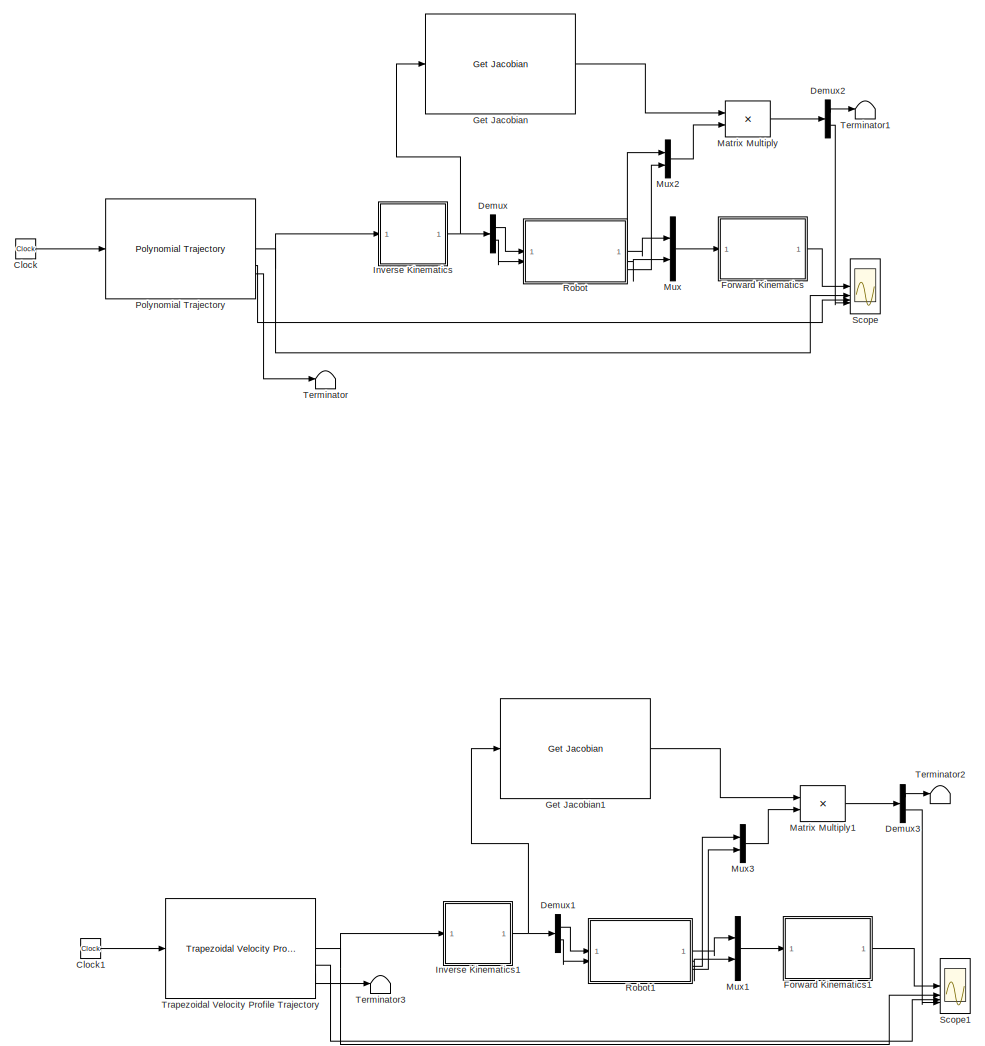
[diagram: root canvas - part 1/2, left side, full height]
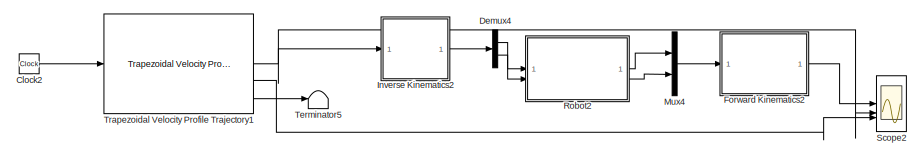
[diagram: root canvas - part 2/2, bottom right region]
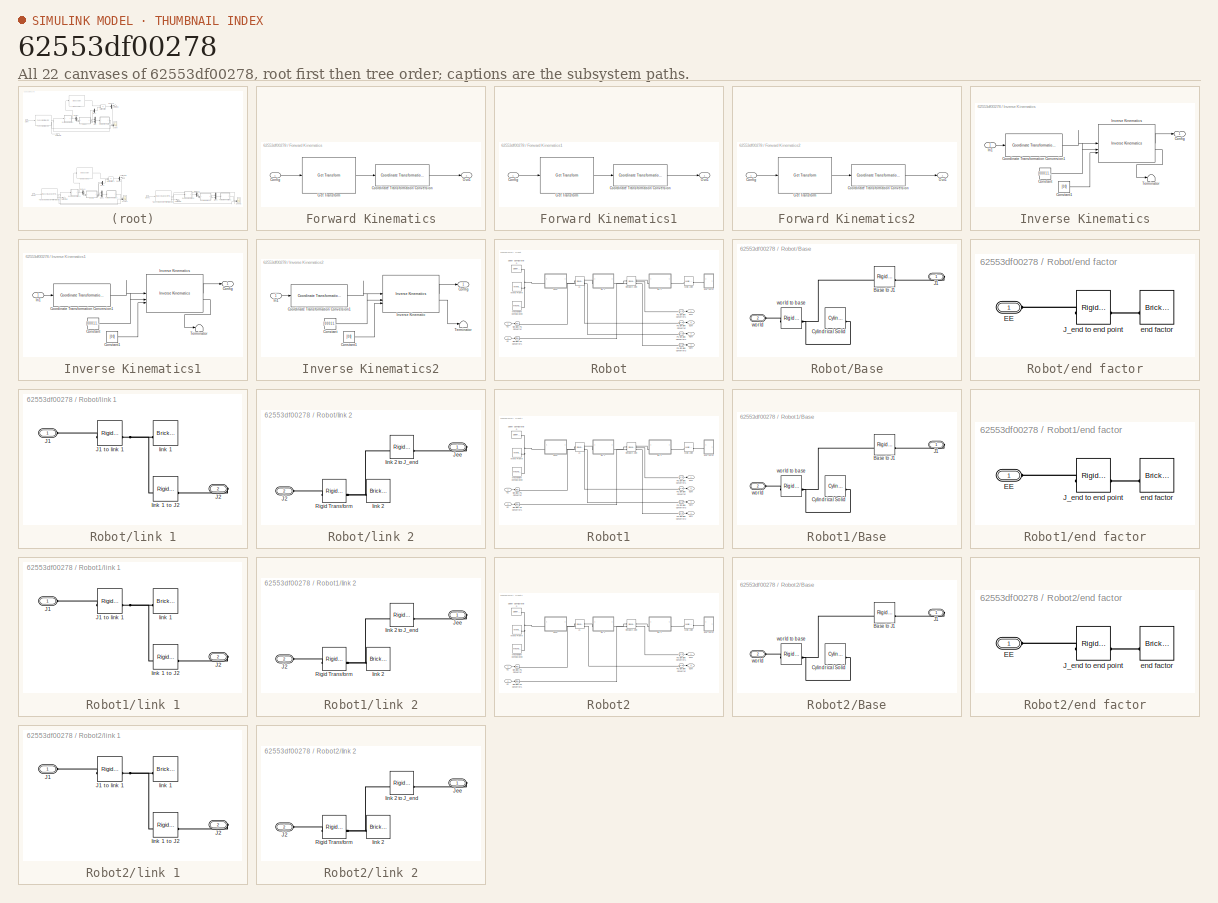
[diagram: thumbnail index - all 22 canvases of the model, root first then tree order]
MODEL slx_62553df00278
KIND model
CONFIG AbsTol = auto
CONFIG EnableMultiTasking = off
CONFIG FixedStep = auto
CONFIG MaxStep = auto
CONFIG MinStep = auto
CONFIG RelTol = 1e-3
CONFIG SampleTimeConstraint = Unconstrained
CONFIG SolverName = VariableStepAuto
CONFIG StartTime = 0.0
CONFIG StopTime = 5
BLOCK [Clock] Clock
  Commented = on
BLOCK [Clock] Clock1
  Commented = on
BLOCK [Clock] Clock2
BLOCK [Demux] Demux
  Commented = on
  Outputs = 2
BLOCK [Demux] Demux1
  Commented = on
  Outputs = 2
BLOCK [Demux] Demux2
  Commented = on
  Outputs = 2
BLOCK [Demux] Demux3
  Commented = on
  Outputs = 2
BLOCK [Demux] Demux4
  Outputs = 2
BLOCK [SubSystem] Forward Kinematics
  Commented = on
BLOCK [Inport] Forward Kinematics/Config
BLOCK [Reference] Forward Kinematics/Coordinate Transformation Conversion  REF=robotcorelib/Coordinate Transformation Conversion
  SourceBlock = robotcorelib/Coordinate Transformation Conversion
  SourceType = robotics.slcore.internal.block.CoordinateTransformationConversion
BLOCK [Reference] Forward Kinematics/Get Transform  REF=robotmaniplib/Get Transform
  SourceBlock = robotmaniplib/Get Transform
  SourceType = Get Transform
BLOCK [Outport] Forward Kinematics/Out1
BLOCK [SubSystem] Forward Kinematics1
  Commented = on
BLOCK [Inport] Forward Kinematics1/Config
BLOCK [Reference] Forward Kinematics1/Coordinate Transformation Conversion  REF=robotcorelib/Coordinate Transformation Conversion
  SourceBlock = robotcorelib/Coordinate Transformation Conversion
  SourceType = robotics.slcore.internal.block.CoordinateTransformationConversion
BLOCK [Reference] Forward Kinematics1/Get Transform  REF=robotmaniplib/Get Transform
  SourceBlock = robotmaniplib/Get Transform
  SourceType = Get Transform
BLOCK [Outport] Forward Kinematics1/Out1
BLOCK [SubSystem] Forward Kinematics2
BLOCK [Inport] Forward Kinematics2/Config
BLOCK [Reference] Forward Kinematics2/Coordinate Transformation Conversion  REF=robotcorelib/Coordinate Transformation Conversion
  SourceBlock = robotcorelib/Coordinate Transformation Conversion
  SourceType = robotics.slcore.internal.block.CoordinateTransformationConversion
BLOCK [Reference] Forward Kinematics2/Get Transform  REF=robotmaniplib/Get Transform
  SourceBlock = robotmaniplib/Get Transform
  SourceType = Get Transform
BLOCK [Outport] Forward Kinematics2/Out1
BLOCK [Reference] Get Jacobian  REF=robotmaniplib/Get Jacobian
  Commented = on
  SourceBlock = robotmaniplib/Get Jacobian
  SourceType = Get Jacobian
BLOCK [Reference] Get Jacobian1  REF=robotmaniplib/Get Jacobian
  Commented = on
  SourceBlock = robotmaniplib/Get Jacobian
  SourceType = Get Jacobian
BLOCK [SubSystem] Inverse Kinematics
  Commented = on
BLOCK [Outport] Inverse Kinematics/Config
BLOCK [Constant] Inverse Kinematics/Constant
  Value = [0 0 0 1 1 1]
BLOCK [Constant] Inverse Kinematics/Constant1
  Value = [0 0]
BLOCK [Reference] Inverse Kinematics/Coordinate Transformation Conversion1  REF=robotcorelib/Coordinate Transformation Conversion
  SourceBlock = robotcorelib/Coordinate Transformation Conversion
  SourceType = robotics.slcore.internal.block.CoordinateTransformationConversion
BLOCK [Inport] Inverse Kinematics/In1
BLOCK [Reference] Inverse Kinematics/Inverse Kinematics  REF=robotmaniplib/Inverse Kinematics
  SourceBlock = robotmaniplib/Inverse Kinematics
  SourceType = Inverse Kinematics
BLOCK [Terminator] Inverse Kinematics/Terminator
BLOCK [SubSystem] Inverse Kinematics1
  Commented = on
BLOCK [Outport] Inverse Kinematics1/Config
BLOCK [Constant] Inverse Kinematics1/Constant
  Value = [0 0 0 1 1 1]
BLOCK [Constant] Inverse Kinematics1/Constant1
  Value = [0 0]
BLOCK [Reference] Inverse Kinematics1/Coordinate Transformation Conversion1  REF=robotcorelib/Coordinate Transformation Conversion
  SourceBlock = robotcorelib/Coordinate Transformation Conversion
  SourceType = robotics.slcore.internal.block.CoordinateTransformationConversion
BLOCK [Inport] Inverse Kinematics1/In1
BLOCK [Reference] Inverse Kinematics1/Inverse Kinematics  REF=robotmaniplib/Inverse Kinematics
  SourceBlock = robotmaniplib/Inverse Kinematics
  SourceType = Inverse Kinematics
BLOCK [Terminator] Inverse Kinematics1/Terminator
BLOCK [SubSystem] Inverse Kinematics2
BLOCK [Outport] Inverse Kinematics2/Config
BLOCK [Constant] Inverse Kinematics2/Constant
  Value = [0 0 0 1 1 1]
BLOCK [Constant] Inverse Kinematics2/Constant1
  Value = [0 0]
BLOCK [Reference] Inverse Kinematics2/Coordinate Transformation Conversion1  REF=robotcorelib/Coordinate Transformation Conversion
  SourceBlock = robotcorelib/Coordinate Transformation Conversion
  SourceType = robotics.slcore.internal.block.CoordinateTransformationConversion
BLOCK [Inport] Inverse Kinematics2/In1
BLOCK [Reference] Inverse Kinematics2/Inverse Kinematic  REF=robotmaniplib/Inverse Kinematics
  SourceBlock = robotmaniplib/Inverse Kinematics
  SourceType = Inverse Kinematics
BLOCK [Terminator] Inverse Kinematics2/Terminator
BLOCK [Product] Matrix Multiply
  Commented = on
  Multiplication = Matrix(*)
BLOCK [Product] Matrix Multiply1
  Commented = on
  Multiplication = Matrix(*)
BLOCK [Mux] Mux
  Commented = on
  DisplayOption = bar
  Inputs = 2
BLOCK [Mux] Mux1
  Commented = on
  DisplayOption = bar
  Inputs = 2
BLOCK [Mux] Mux2
  Commented = on
  DisplayOption = bar
  Inputs = 2
BLOCK [Mux] Mux3
  Commented = on
  DisplayOption = bar
  Inputs = 2
BLOCK [Mux] Mux4
  DisplayOption = bar
  Inputs = 2
BLOCK [Reference] Polynomial Trajectory  REF=robotcorelib/Polynomial Trajectory
  Commented = on
  SourceBlock = robotcorelib/Polynomial Trajectory
  SourceType = robotics.slcore.internal.block.PolyTrajSys
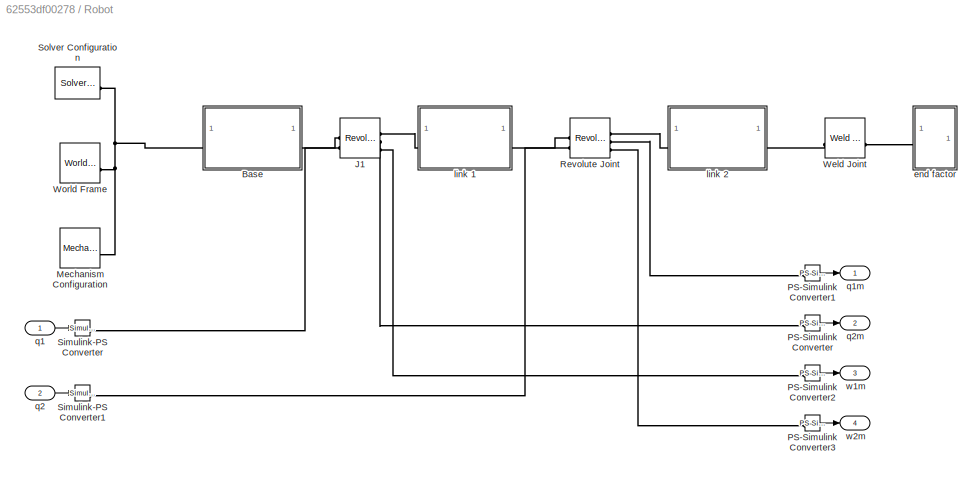
BLOCK [SubSystem] Robot
  Commented = on
BLOCK [SubSystem] Robot/Base
BLOCK [Reference] Robot/Base/Base to J1  REF=sm_lib/Frames and
Transforms/Rigid
Transform
  SourceBlock = sm_lib/Frames and\nTransforms/Rigid\nTransform
  SourceType = Rigid\nTransform
BLOCK [Reference] Robot/Base/Cylindrical Solid  REF=sm_lib/Body Elements/Cylindrical Solid
  SourceBlock = sm_lib/Body Elements/Cylindrical Solid
  SourceType = Cylindrical Solid
BLOCK [PMIOPort] Robot/Base/J1
  Side = Right
BLOCK [PMIOPort] Robot/Base/world
  Port = 2
  Side = Left
BLOCK [Reference] Robot/Base/world to base  REF=sm_lib/Frames and
Transforms/Rigid
Transform
  SourceBlock = sm_lib/Frames and\nTransforms/Rigid\nTransform
  SourceType = Rigid\nTransform
BLOCK [Reference] Robot/J1  REF=sm_lib/Joints/Revolute Joint
  SourceBlock = sm_lib/Joints/Revolute Joint
  SourceType = Revolute Joint
BLOCK [Reference] Robot/Mechanism Configuration  REF=sm_lib/Utilities/Mechanism
Configuration
  SourceBlock = sm_lib/Utilities/Mechanism\nConfiguration
  SourceType = Mechanism\nConfiguration
BLOCK [Reference] Robot/PS-Simulink Converter  REF=nesl_utility/PS-Simulink
Converter
  SourceBlock = nesl_utility/PS-Simulink\nConverter
  SourceType = PS-Simulink\nConverter
BLOCK [Reference] Robot/PS-Simulink Converter1  REF=nesl_utility/PS-Simulink
Converter
  SourceBlock = nesl_utility/PS-Simulink\nConverter
  SourceType = PS-Simulink\nConverter
BLOCK [Reference] Robot/PS-Simulink Converter2  REF=nesl_utility/PS-Simulink
Converter
  SourceBlock = nesl_utility/PS-Simulink\nConverter
  SourceType = PS-Simulink\nConverter
BLOCK [Reference] Robot/PS-Simulink Converter3  REF=nesl_utility/PS-Simulink
Converter
  SourceBlock = nesl_utility/PS-Simulink\nConverter
  SourceType = PS-Simulink\nConverter
BLOCK [Reference] Robot/Revolute Joint  REF=sm_lib/Joints/Revolute Joint
  SourceBlock = sm_lib/Joints/Revolute Joint
  SourceType = Revolute Joint
BLOCK [Reference] Robot/Simulink-PS Converter  REF=nesl_utility/Simulink-PS
Converter
  SourceBlock = nesl_utility/Simulink-PS\nConverter
  SourceType = Simulink-PS\nConverter
BLOCK [Reference] Robot/Simulink-PS Converter1  REF=nesl_utility/Simulink-PS
Converter
  SourceBlock = nesl_utility/Simulink-PS\nConverter
  SourceType = Simulink-PS\nConverter
BLOCK [Reference] Robot/Solver Configuration  REF=nesl_utility/Solver
Configuration
  SourceBlock = nesl_utility/Solver\nConfiguration
  SourceType = Solver\nConfiguration
BLOCK [Reference] Robot/Weld Joint  REF=sm_lib/Joints/Weld Joint
  SourceBlock = sm_lib/Joints/Weld Joint
  SourceType = Weld Joint
BLOCK [Reference] Robot/World Frame  REF=sm_lib/Frames and
Transforms/World Frame
  SourceBlock = sm_lib/Frames and\nTransforms/World Frame
  SourceType = World Frame
BLOCK [SubSystem] Robot/end factor
BLOCK [PMIOPort] Robot/end factor/EE
  Side = Left
BLOCK [Reference] Robot/end factor/J_end to end point  REF=sm_lib/Frames and
Transforms/Rigid
Transform
  SourceBlock = sm_lib/Frames and\nTransforms/Rigid\nTransform
  SourceType = Rigid\nTransform
BLOCK [Reference] Robot/end factor/end factor  REF=sm_lib/Body Elements/Brick Solid
  NameLocation = top
  SourceBlock = sm_lib/Body Elements/Brick Solid
  SourceType = Brick Solid
BLOCK [SubSystem] Robot/link 1
BLOCK [PMIOPort] Robot/link 1/J1
  Side = Left
BLOCK [Reference] Robot/link 1/J1 to link 1  REF=sm_lib/Frames and
Transforms/Rigid
Transform
  SourceBlock = sm_lib/Frames and\nTransforms/Rigid\nTransform
  SourceType = Rigid\nTransform
BLOCK [PMIOPort] Robot/link 1/J2
  Port = 2
  Side = Right
BLOCK [Reference] Robot/link 1/link 1  REF=sm_lib/Body Elements/Brick Solid
  NameLocation = top
  SourceBlock = sm_lib/Body Elements/Brick Solid
  SourceType = Brick Solid
BLOCK [Reference] Robot/link 1/link 1 to J2  REF=sm_lib/Frames and
Transforms/Rigid
Transform
  SourceBlock = sm_lib/Frames and\nTransforms/Rigid\nTransform
  SourceType = Rigid\nTransform
BLOCK [SubSystem] Robot/link 2
BLOCK [PMIOPort] Robot/link 2/J2
  Port = 2
  Side = Left
BLOCK [PMIOPort] Robot/link 2/Jee
  Side = Right
BLOCK [Reference] Robot/link 2/Rigid Transform  REF=sm_lib/Frames and
Transforms/Rigid
Transform
  SourceBlock = sm_lib/Frames and\nTransforms/Rigid\nTransform
  SourceType = Rigid\nTransform
BLOCK [Reference] Robot/link 2/link 2  REF=sm_lib/Body Elements/Brick Solid
  NameLocation = top
  SourceBlock = sm_lib/Body Elements/Brick Solid
  SourceType = Brick Solid
BLOCK [Reference] Robot/link 2/link 2 to J_end  REF=sm_lib/Frames and
Transforms/Rigid
Transform
  SourceBlock = sm_lib/Frames and\nTransforms/Rigid\nTransform
  SourceType = Rigid\nTransform
BLOCK [Inport] Robot/q1
BLOCK [Outport] Robot/q1m
BLOCK [Inport] Robot/q2
  Port = 2
BLOCK [Outport] Robot/q2m
  Port = 2
BLOCK [Outport] Robot/w1m
  Port = 3
BLOCK [Outport] Robot/w2m
  Port = 4
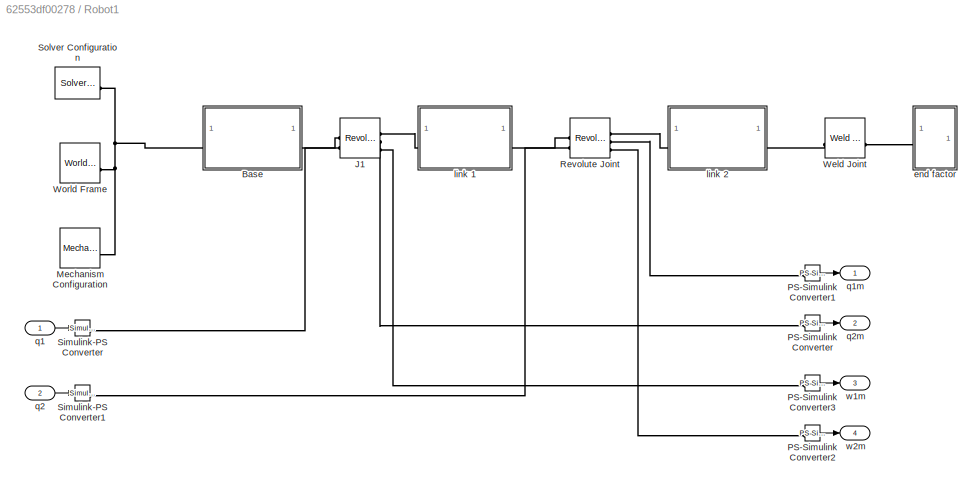
BLOCK [SubSystem] Robot1
  Commented = on
BLOCK [SubSystem] Robot1/Base
BLOCK [Reference] Robot1/Base/Base to J1  REF=sm_lib/Frames and
Transforms/Rigid
Transform
  SourceBlock = sm_lib/Frames and\nTransforms/Rigid\nTransform
  SourceType = Rigid\nTransform
BLOCK [Reference] Robot1/Base/Cylindrical Solid  REF=sm_lib/Body Elements/Cylindrical Solid
  SourceBlock = sm_lib/Body Elements/Cylindrical Solid
  SourceType = Cylindrical Solid
BLOCK [PMIOPort] Robot1/Base/J1
  Side = Right
BLOCK [PMIOPort] Robot1/Base/world
  Port = 2
  Side = Left
BLOCK [Reference] Robot1/Base/world to base  REF=sm_lib/Frames and
Transforms/Rigid
Transform
  SourceBlock = sm_lib/Frames and\nTransforms/Rigid\nTransform
  SourceType = Rigid\nTransform
BLOCK [Reference] Robot1/J1  REF=sm_lib/Joints/Revolute Joint
  SourceBlock = sm_lib/Joints/Revolute Joint
  SourceType = Revolute Joint
BLOCK [Reference] Robot1/Mechanism Configuration  REF=sm_lib/Utilities/Mechanism
Configuration
  SourceBlock = sm_lib/Utilities/Mechanism\nConfiguration
  SourceType = Mechanism\nConfiguration
BLOCK [Reference] Robot1/PS-Simulink Converter  REF=nesl_utility/PS-Simulink
Converter
  SourceBlock = nesl_utility/PS-Simulink\nConverter
  SourceType = PS-Simulink\nConverter
BLOCK [Reference] Robot1/PS-Simulink Converter1  REF=nesl_utility/PS-Simulink
Converter
  SourceBlock = nesl_utility/PS-Simulink\nConverter
  SourceType = PS-Simulink\nConverter
BLOCK [Reference] Robot1/PS-Simulink Converter2  REF=nesl_utility/PS-Simulink
Converter
  SourceBlock = nesl_utility/PS-Simulink\nConverter
  SourceType = PS-Simulink\nConverter
BLOCK [Reference] Robot1/PS-Simulink Converter3  REF=nesl_utility/PS-Simulink
Converter
  SourceBlock = nesl_utility/PS-Simulink\nConverter
  SourceType = PS-Simulink\nConverter
BLOCK [Reference] Robot1/Revolute Joint  REF=sm_lib/Joints/Revolute Joint
  SourceBlock = sm_lib/Joints/Revolute Joint
  SourceType = Revolute Joint
BLOCK [Reference] Robot1/Simulink-PS Converter  REF=nesl_utility/Simulink-PS
Converter
  SourceBlock = nesl_utility/Simulink-PS\nConverter
  SourceType = Simulink-PS\nConverter
BLOCK [Reference] Robot1/Simulink-PS Converter1  REF=nesl_utility/Simulink-PS
Converter
  SourceBlock = nesl_utility/Simulink-PS\nConverter
  SourceType = Simulink-PS\nConverter
BLOCK [Reference] Robot1/Solver Configuration  REF=nesl_utility/Solver
Configuration
  SourceBlock = nesl_utility/Solver\nConfiguration
  SourceType = Solver\nConfiguration
BLOCK [Reference] Robot1/Weld Joint  REF=sm_lib/Joints/Weld Joint
  SourceBlock = sm_lib/Joints/Weld Joint
  SourceType = Weld Joint
BLOCK [Reference] Robot1/World Frame  REF=sm_lib/Frames and
Transforms/World Frame
  SourceBlock = sm_lib/Frames and\nTransforms/World Frame
  SourceType = World Frame
BLOCK [SubSystem] Robot1/end factor
BLOCK [PMIOPort] Robot1/end factor/EE
  Side = Left
BLOCK [Reference] Robot1/end factor/J_end to end point  REF=sm_lib/Frames and
Transforms/Rigid
Transform
  SourceBlock = sm_lib/Frames and\nTransforms/Rigid\nTransform
  SourceType = Rigid\nTransform
BLOCK [Reference] Robot1/end factor/end factor  REF=sm_lib/Body Elements/Brick Solid
  NameLocation = top
  SourceBlock = sm_lib/Body Elements/Brick Solid
  SourceType = Brick Solid
BLOCK [SubSystem] Robot1/link 1
BLOCK [PMIOPort] Robot1/link 1/J1
  Side = Left
BLOCK [Reference] Robot1/link 1/J1 to link 1  REF=sm_lib/Frames and
Transforms/Rigid
Transform
  SourceBlock = sm_lib/Frames and\nTransforms/Rigid\nTransform
  SourceType = Rigid\nTransform
BLOCK [PMIOPort] Robot1/link 1/J2
  Port = 2
  Side = Right
BLOCK [Reference] Robot1/link 1/link 1  REF=sm_lib/Body Elements/Brick Solid
  NameLocation = top
  SourceBlock = sm_lib/Body Elements/Brick Solid
  SourceType = Brick Solid
BLOCK [Reference] Robot1/link 1/link 1 to J2  REF=sm_lib/Frames and
Transforms/Rigid
Transform
  SourceBlock = sm_lib/Frames and\nTransforms/Rigid\nTransform
  SourceType = Rigid\nTransform
BLOCK [SubSystem] Robot1/link 2
BLOCK [PMIOPort] Robot1/link 2/J2
  Port = 2
  Side = Left
BLOCK [PMIOPort] Robot1/link 2/Jee
  Side = Right
BLOCK [Reference] Robot1/link 2/Rigid Transform  REF=sm_lib/Frames and
Transforms/Rigid
Transform
  SourceBlock = sm_lib/Frames and\nTransforms/Rigid\nTransform
  SourceType = Rigid\nTransform
BLOCK [Reference] Robot1/link 2/link 2  REF=sm_lib/Body Elements/Brick Solid
  NameLocation = top
  SourceBlock = sm_lib/Body Elements/Brick Solid
  SourceType = Brick Solid
BLOCK [Reference] Robot1/link 2/link 2 to J_end  REF=sm_lib/Frames and
Transforms/Rigid
Transform
  SourceBlock = sm_lib/Frames and\nTransforms/Rigid\nTransform
  SourceType = Rigid\nTransform
BLOCK [Inport] Robot1/q1
BLOCK [Outport] Robot1/q1m
BLOCK [Inport] Robot1/q2
  Port = 2
BLOCK [Outport] Robot1/q2m
  Port = 2
BLOCK [Outport] Robot1/w1m
  Port = 3
BLOCK [Outport] Robot1/w2m
  Port = 4
BLOCK [SubSystem] Robot2
BLOCK [SubSystem] Robot2/Base
BLOCK [Reference] Robot2/Base/Base to J1  REF=sm_lib/Frames and
Transforms/Rigid
Transform
  SourceBlock = sm_lib/Frames and\nTransforms/Rigid\nTransform
  SourceType = Rigid\nTransform
BLOCK [Reference] Robot2/Base/Cylindrical Solid  REF=sm_lib/Body Elements/Cylindrical Solid
  SourceBlock = sm_lib/Body Elements/Cylindrical Solid
  SourceType = Cylindrical Solid
BLOCK [PMIOPort] Robot2/Base/J1
  Side = Right
BLOCK [PMIOPort] Robot2/Base/world
  Port = 2
  Side = Left
BLOCK [Reference] Robot2/Base/world to base  REF=sm_lib/Frames and
Transforms/Rigid
Transform
  SourceBlock = sm_lib/Frames and\nTransforms/Rigid\nTransform
  SourceType = Rigid\nTransform
BLOCK [Reference] Robot2/J1  REF=sm_lib/Joints/Revolute Joint
  SourceBlock = sm_lib/Joints/Revolute Joint
  SourceType = Revolute Joint
BLOCK [Reference] Robot2/Mechanism Configuration  REF=sm_lib/Utilities/Mechanism
Configuration
  SourceBlock = sm_lib/Utilities/Mechanism\nConfiguration
  SourceType = Mechanism\nConfiguration
BLOCK [Reference] Robot2/PS-Simulink Converter  REF=nesl_utility/PS-Simulink
Converter
  SourceBlock = nesl_utility/PS-Simulink\nConverter
  SourceType = PS-Simulink\nConverter
BLOCK [Reference] Robot2/PS-Simulink Converter1  REF=nesl_utility/PS-Simulink
Converter
  SourceBlock = nesl_utility/PS-Simulink\nConverter
  SourceType = PS-Simulink\nConverter
BLOCK [Reference] Robot2/Revolute Joint  REF=sm_lib/Joints/Revolute Joint
  SourceBlock = sm_lib/Joints/Revolute Joint
  SourceType = Revolute Joint
BLOCK [Reference] Robot2/Simulink-PS Converter  REF=nesl_utility/Simulink-PS
Converter
  SourceBlock = nesl_utility/Simulink-PS\nConverter
  SourceType = Simulink-PS\nConverter
BLOCK [Reference] Robot2/Simulink-PS Converter1  REF=nesl_utility/Simulink-PS
Converter
  SourceBlock = nesl_utility/Simulink-PS\nConverter
  SourceType = Simulink-PS\nConverter
BLOCK [Reference] Robot2/Solver Configuration  REF=nesl_utility/Solver
Configuration
  SourceBlock = nesl_utility/Solver\nConfiguration
  SourceType = Solver\nConfiguration
BLOCK [Reference] Robot2/Weld Joint  REF=sm_lib/Joints/Weld Joint
  SourceBlock = sm_lib/Joints/Weld Joint
  SourceType = Weld Joint
BLOCK [Reference] Robot2/World Frame  REF=sm_lib/Frames and
Transforms/World Frame
  SourceBlock = sm_lib/Frames and\nTransforms/World Frame
  SourceType = World Frame
BLOCK [SubSystem] Robot2/end factor
BLOCK [PMIOPort] Robot2/end factor/EE
  Side = Left
BLOCK [Reference] Robot2/end factor/J_end to end point  REF=sm_lib/Frames and
Transforms/Rigid
Transform
  SourceBlock = sm_lib/Frames and\nTransforms/Rigid\nTransform
  SourceType = Rigid\nTransform
BLOCK [Reference] Robot2/end factor/end factor  REF=sm_lib/Body Elements/Brick Solid
  NameLocation = top
  SourceBlock = sm_lib/Body Elements/Brick Solid
  SourceType = Brick Solid
BLOCK [SubSystem] Robot2/link 1
BLOCK [PMIOPort] Robot2/link 1/J1
  Side = Left
BLOCK [Reference] Robot2/link 1/J1 to link 1  REF=sm_lib/Frames and
Transforms/Rigid
Transform
  SourceBlock = sm_lib/Frames and\nTransforms/Rigid\nTransform
  SourceType = Rigid\nTransform
BLOCK [PMIOPort] Robot2/link 1/J2
  Port = 2
  Side = Right
BLOCK [Reference] Robot2/link 1/link 1  REF=sm_lib/Body Elements/Brick Solid
  NameLocation = top
  SourceBlock = sm_lib/Body Elements/Brick Solid
  SourceType = Brick Solid
BLOCK [Reference] Robot2/link 1/link 1 to J2  REF=sm_lib/Frames and
Transforms/Rigid
Transform
  SourceBlock = sm_lib/Frames and\nTransforms/Rigid\nTransform
  SourceType = Rigid\nTransform
BLOCK [SubSystem] Robot2/link 2
BLOCK [PMIOPort] Robot2/link 2/J2
  Port = 2
  Side = Left
BLOCK [PMIOPort] Robot2/link 2/Jee
  Side = Right
BLOCK [Reference] Robot2/link 2/Rigid Transform  REF=sm_lib/Frames and
Transforms/Rigid
Transform
  SourceBlock = sm_lib/Frames and\nTransforms/Rigid\nTransform
  SourceType = Rigid\nTransform
BLOCK [Reference] Robot2/link 2/link 2  REF=sm_lib/Body Elements/Brick Solid
  NameLocation = top
  SourceBlock = sm_lib/Body Elements/Brick Solid
  SourceType = Brick Solid
BLOCK [Reference] Robot2/link 2/link 2 to J_end  REF=sm_lib/Frames and
Transforms/Rigid
Transform
  SourceBlock = sm_lib/Frames and\nTransforms/Rigid\nTransform
  SourceType = Rigid\nTransform
BLOCK [Inport] Robot2/q1
BLOCK [Outport] Robot2/q1m
BLOCK [Inport] Robot2/q2
  Port = 2
BLOCK [Outport] Robot2/q2m
  Port = 2
BLOCK [Scope] Scope
  Commented = on
  Floating = off
  NumInputPorts = 4
  ScopeSpecificationString = Simulink.scopes.TimeScopeBlockCfg('CurrentConfiguration', extmgr.ConfigurationSet(extmgr.Configuration('Core','General UI',true),extmgr.Configuration('Core','Source UI',true),extmgr.Configuration('Sources','WiredSimulink',true),extmgr.Configuration('Visuals','Time Domain',true,'SerializedDisplays',{struct('MinYLimReal','-0.21482','MaxYLimReal','0.41276','YLabelReal','','MinYLimMag','0.00000','MaxY...<+2904ch>
BLOCK [Scope] Scope1
  Commented = on
  Floating = off
  NumInputPorts = 4
  ScopeSpecificationString = Simulink.scopes.TimeScopeBlockCfg('CurrentConfiguration', extmgr.ConfigurationSet(extmgr.Configuration('Core','General UI',true),extmgr.Configuration('Core','Source UI',true),extmgr.Configuration('Sources','WiredSimulink',true,'DataLoggingVariableName','ScopeData1'),extmgr.Configuration('Visuals','Time Domain',true,'SerializedDisplays',{struct('MinYLimReal','-0.21489','MaxYLimReal','0.41277','YLab...<+3720ch>
BLOCK [Scope] Scope2
  Floating = off
  NumInputPorts = 3
  ScopeSpecificationString = Simulink.scopes.TimeScopeBlockCfg('CurrentConfiguration', extmgr.ConfigurationSet(extmgr.Configuration('Core','General UI',true),extmgr.Configuration('Core','Source UI',true),extmgr.Configuration('Sources','WiredSimulink',true,'DataLoggingVariableName','ScopeData1'),extmgr.Configuration('Visuals','Time Domain',true,'SerializedDisplays',{struct('MinYLimReal','-0.21489','MaxYLimReal','0.41277','YLab...<+2999ch>
BLOCK [Terminator] Terminator
  Commented = on
BLOCK [Terminator] Terminator1
  Commented = on
BLOCK [Terminator] Terminator2
  Commented = on
BLOCK [Terminator] Terminator3
  Commented = on
BLOCK [Terminator] Terminator5
BLOCK [Reference] Trapezoidal Velocity Profile Trajectory  REF=robotcorelib/Trapezoidal Velocity Profile Trajectory
  Commented = on
  SourceBlock = robotcorelib/Trapezoidal Velocity Profile Trajectory
  SourceType = robotics.slcore.internal.block.TrapVelTrajSys
BLOCK [Reference] Trapezoidal Velocity Profile Trajectory1  REF=robotcorelib/Trapezoidal Velocity Profile Trajectory
  SourceBlock = robotcorelib/Trapezoidal Velocity Profile Trajectory
  SourceType = robotics.slcore.internal.block.TrapVelTrajSys
LINE Clock1:1 -> Trapezoidal Velocity Profile Trajectory:1
LINE Clock2:1 -> Trapezoidal Velocity Profile Trajectory1:1
LINE Clock:1 -> Polynomial Trajectory:1
LINE Demux1:1 -> Robot1:1
LINE Demux1:2 -> Robot1:2
LINE Demux2:1 -> Terminator1:1
LINE Demux2:2 -> Scope:4
LINE Demux3:1 -> Terminator2:1
LINE Demux3:2 -> Scope1:4
LINE Demux4:1 -> Robot2:1
LINE Demux4:2 -> Robot2:2
LINE Demux:1 -> Robot:1
LINE Demux:2 -> Robot:2
LINE Forward Kinematics/Config:1 -> Forward Kinematics/Get Transform:1
LINE Forward Kinematics/Coordinate Transformation Conversion:1 -> Forward Kinematics/Out1:1
LINE Forward Kinematics/Get Transform:1 -> Forward Kinematics/Coordinate Transformation Conversion:1
LINE Forward Kinematics1/Config:1 -> Forward Kinematics1/Get Transform:1
LINE Forward Kinematics1/Coordinate Transformation Conversion:1 -> Forward Kinematics1/Out1:1
LINE Forward Kinematics1/Get Transform:1 -> Forward Kinematics1/Coordinate Transformation Conversion:1
LINE Forward Kinematics1:1 -> Scope1:1
LINE Forward Kinematics2/Config:1 -> Forward Kinematics2/Get Transform:1
LINE Forward Kinematics2/Coordinate Transformation Conversion:1 -> Forward Kinematics2/Out1:1
LINE Forward Kinematics2/Get Transform:1 -> Forward Kinematics2/Coordinate Transformation Conversion:1
LINE Forward Kinematics2:1 -> Scope2:1
LINE Forward Kinematics:1 -> Scope:1
LINE Get Jacobian1:1 -> Matrix Multiply1:1
LINE Get Jacobian:1 -> Matrix Multiply:1
LINE Inverse Kinematics/Constant1:1 -> Inverse Kinematics/Inverse Kinematics:3
LINE Inverse Kinematics/Constant:1 -> Inverse Kinematics/Inverse Kinematics:2
LINE Inverse Kinematics/Coordinate Transformation Conversion1:1 -> Inverse Kinematics/Inverse Kinematics:1
LINE Inverse Kinematics/In1:1 -> Inverse Kinematics/Coordinate Transformation Conversion1:1
LINE Inverse Kinematics/Inverse Kinematics:1 -> Inverse Kinematics/Config:1
LINE Inverse Kinematics/Inverse Kinematics:2 -> Inverse Kinematics/Terminator:1
LINE Inverse Kinematics1/Constant1:1 -> Inverse Kinematics1/Inverse Kinematics:3
LINE Inverse Kinematics1/Constant:1 -> Inverse Kinematics1/Inverse Kinematics:2
LINE Inverse Kinematics1/Coordinate Transformation Conversion1:1 -> Inverse Kinematics1/Inverse Kinematics:1
LINE Inverse Kinematics1/In1:1 -> Inverse Kinematics1/Coordinate Transformation Conversion1:1
LINE Inverse Kinematics1/Inverse Kinematics:1 -> Inverse Kinematics1/Config:1
LINE Inverse Kinematics1/Inverse Kinematics:2 -> Inverse Kinematics1/Terminator:1
NET Inverse Kinematics1:1 -> Demux1:1, Get Jacobian1:1
LINE Inverse Kinematics2/Constant1:1 -> Inverse Kinematics2/Inverse Kinematic:3
LINE Inverse Kinematics2/Constant:1 -> Inverse Kinematics2/Inverse Kinematic:2
LINE Inverse Kinematics2/Coordinate Transformation Conversion1:1 -> Inverse Kinematics2/Inverse Kinematic:1
LINE Inverse Kinematics2/In1:1 -> Inverse Kinematics2/Coordinate Transformation Conversion1:1
LINE Inverse Kinematics2/Inverse Kinematic:1 -> Inverse Kinematics2/Config:1
LINE Inverse Kinematics2/Inverse Kinematic:2 -> Inverse Kinematics2/Terminator:1
LINE Inverse Kinematics2:1 -> Demux4:1
NET Inverse Kinematics:1 -> Demux:1, Get Jacobian:1
LINE Matrix Multiply1:1 -> Demux3:1
LINE Matrix Multiply:1 -> Demux2:1
LINE Mux1:1 -> Forward Kinematics1:1
LINE Mux2:1 -> Matrix Multiply:2
LINE Mux3:1 -> Matrix Multiply1:2
LINE Mux4:1 -> Forward Kinematics2:1
LINE Mux:1 -> Forward Kinematics:1
NET Polynomial Trajectory:1 -> Inverse Kinematics:1, Scope:2
LINE Polynomial Trajectory:2 -> Scope:3
LINE Polynomial Trajectory:3 -> Terminator:1
LINE Robot/PS-Simulink Converter1:1 -> Robot/q1m:1
LINE Robot/PS-Simulink Converter2:1 -> Robot/w1m:1
LINE Robot/PS-Simulink Converter3:1 -> Robot/w2m:1
LINE Robot/PS-Simulink Converter:1 -> Robot/q2m:1
LINE Robot/q1:1 -> Robot/Simulink-PS Converter:1
LINE Robot/q2:1 -> Robot/Simulink-PS Converter1:1
LINE Robot1/PS-Simulink Converter1:1 -> Robot1/q1m:1
LINE Robot1/PS-Simulink Converter2:1 -> Robot1/w2m:1
LINE Robot1/PS-Simulink Converter3:1 -> Robot1/w1m:1
LINE Robot1/PS-Simulink Converter:1 -> Robot1/q2m:1
LINE Robot1/q1:1 -> Robot1/Simulink-PS Converter:1
LINE Robot1/q2:1 -> Robot1/Simulink-PS Converter1:1
LINE Robot1:1 -> Mux1:1
LINE Robot1:2 -> Mux1:2
LINE Robot1:3 -> Mux3:1
LINE Robot1:4 -> Mux3:2
LINE Robot2/PS-Simulink Converter1:1 -> Robot2/q1m:1
LINE Robot2/PS-Simulink Converter:1 -> Robot2/q2m:1
LINE Robot2/q1:1 -> Robot2/Simulink-PS Converter:1
LINE Robot2/q2:1 -> Robot2/Simulink-PS Converter1:1
LINE Robot2:1 -> Mux4:1
LINE Robot2:2 -> Mux4:2
LINE Robot:1 -> Mux:1
LINE Robot:2 -> Mux:2
LINE Robot:3 -> Mux2:1
LINE Robot:4 -> Mux2:2
NET Trapezoidal Velocity Profile Trajectory1:1 -> Inverse Kinematics2:1, Scope2:2
LINE Trapezoidal Velocity Profile Trajectory1:2 -> Scope2:3
LINE Trapezoidal Velocity Profile Trajectory1:3 -> Terminator5:1
NET Trapezoidal Velocity Profile Trajectory:1 -> Inverse Kinematics1:1, Scope1:2
LINE Trapezoidal Velocity Profile Trajectory:2 -> Scope1:3
LINE Trapezoidal Velocity Profile Trajectory:3 -> Terminator3:1
PNET net1: Robot/Base/Base to J1:LConn1 -- Robot/Base/Cylindrical Solid:RConn1 -- Robot/Base/world to base:RConn1
PLINE Robot/Base/Base to J1:RConn1 -- Robot/Base/J1:RConn1
PLINE Robot/Base/world to base:LConn1 -- Robot/Base/world:RConn1
PNET net2: Robot/Base:LConn1 -- Robot/Mechanism Configuration:RConn1 -- Robot/Solver Configuration:RConn1 -- Robot/World Frame:RConn1
PLINE Robot/Base:RConn1 -- Robot/J1:LConn1
PLINE Robot/J1:LConn2 -- Robot/Simulink-PS Converter:RConn1
PLINE Robot/J1:RConn1 -- Robot/link 1:LConn1
PLINE Robot/J1:RConn2 -- Robot/PS-Simulink Converter:LConn1
PLINE Robot/J1:RConn3 -- Robot/PS-Simulink Converter2:LConn1
PLINE Robot/PS-Simulink Converter1:LConn1 -- Robot/Revolute Joint:RConn2
PLINE Robot/PS-Simulink Converter3:LConn1 -- Robot/Revolute Joint:RConn3
PLINE Robot/Revolute Joint:LConn1 -- Robot/link 1:RConn1
PLINE Robot/Revolute Joint:LConn2 -- Robot/Simulink-PS Converter1:RConn1
PLINE Robot/Revolute Joint:RConn1 -- Robot/link 2:LConn1
PLINE Robot/Weld Joint:LConn1 -- Robot/link 2:RConn1
PLINE Robot/Weld Joint:RConn1 -- Robot/end factor:LConn1
PLINE Robot/end factor/EE:RConn1 -- Robot/end factor/J_end to end point:LConn1
PLINE Robot/end factor/J_end to end point:RConn1 -- Robot/end factor/end factor:RConn1
PLINE Robot/link 1/J1 to link 1:LConn1 -- Robot/link 1/J1:RConn1
PNET net3: Robot/link 1/J1 to link 1:RConn1 -- Robot/link 1/link 1 to J2:LConn1 -- Robot/link 1/link 1:RConn1
PLINE Robot/link 1/J2:RConn1 -- Robot/link 1/link 1 to J2:RConn1
PLINE Robot/link 2/J2:RConn1 -- Robot/link 2/Rigid Transform:LConn1
PLINE Robot/link 2/Jee:RConn1 -- Robot/link 2/link 2 to J_end:RConn1
PNET net4: Robot/link 2/Rigid Transform:RConn1 -- Robot/link 2/link 2 to J_end:LConn1 -- Robot/link 2/link 2:RConn1
PNET net5: Robot1/Base/Base to J1:LConn1 -- Robot1/Base/Cylindrical Solid:RConn1 -- Robot1/Base/world to base:RConn1
PLINE Robot1/Base/Base to J1:RConn1 -- Robot1/Base/J1:RConn1
PLINE Robot1/Base/world to base:LConn1 -- Robot1/Base/world:RConn1
PNET net6: Robot1/Base:LConn1 -- Robot1/Mechanism Configuration:RConn1 -- Robot1/Solver Configuration:RConn1 -- Robot1/World Frame:RConn1
PLINE Robot1/Base:RConn1 -- Robot1/J1:LConn1
PLINE Robot1/J1:LConn2 -- Robot1/Simulink-PS Converter:RConn1
PLINE Robot1/J1:RConn1 -- Robot1/link 1:LConn1
PLINE Robot1/J1:RConn2 -- Robot1/PS-Simulink Converter:LConn1
PLINE Robot1/J1:RConn3 -- Robot1/PS-Simulink Converter3:LConn1
PLINE Robot1/PS-Simulink Converter1:LConn1 -- Robot1/Revolute Joint:RConn2
PLINE Robot1/PS-Simulink Converter2:LConn1 -- Robot1/Revolute Joint:RConn3
PLINE Robot1/Revolute Joint:LConn1 -- Robot1/link 1:RConn1
PLINE Robot1/Revolute Joint:LConn2 -- Robot1/Simulink-PS Converter1:RConn1
PLINE Robot1/Revolute Joint:RConn1 -- Robot1/link 2:LConn1
PLINE Robot1/Weld Joint:LConn1 -- Robot1/link 2:RConn1
PLINE Robot1/Weld Joint:RConn1 -- Robot1/end factor:LConn1
PLINE Robot1/end factor/EE:RConn1 -- Robot1/end factor/J_end to end point:LConn1
PLINE Robot1/end factor/J_end to end point:RConn1 -- Robot1/end factor/end factor:RConn1
PLINE Robot1/link 1/J1 to link 1:LConn1 -- Robot1/link 1/J1:RConn1
PNET net7: Robot1/link 1/J1 to link 1:RConn1 -- Robot1/link 1/link 1 to J2:LConn1 -- Robot1/link 1/link 1:RConn1
PLINE Robot1/link 1/J2:RConn1 -- Robot1/link 1/link 1 to J2:RConn1
PLINE Robot1/link 2/J2:RConn1 -- Robot1/link 2/Rigid Transform:LConn1
PLINE Robot1/link 2/Jee:RConn1 -- Robot1/link 2/link 2 to J_end:RConn1
PNET net8: Robot1/link 2/Rigid Transform:RConn1 -- Robot1/link 2/link 2 to J_end:LConn1 -- Robot1/link 2/link 2:RConn1
PNET net9: Robot2/Base/Base to J1:LConn1 -- Robot2/Base/Cylindrical Solid:RConn1 -- Robot2/Base/world to base:RConn1
PLINE Robot2/Base/Base to J1:RConn1 -- Robot2/Base/J1:RConn1
PLINE Robot2/Base/world to base:LConn1 -- Robot2/Base/world:RConn1
PNET net10: Robot2/Base:LConn1 -- Robot2/Mechanism Configuration:RConn1 -- Robot2/Solver Configuration:RConn1 -- Robot2/World Frame:RConn1
PLINE Robot2/Base:RConn1 -- Robot2/J1:LConn1
PLINE Robot2/J1:LConn2 -- Robot2/Simulink-PS Converter:RConn1
PLINE Robot2/J1:RConn1 -- Robot2/link 1:LConn1
PLINE Robot2/J1:RConn2 -- Robot2/PS-Simulink Converter:LConn1
PLINE Robot2/PS-Simulink Converter1:LConn1 -- Robot2/Revolute Joint:RConn2
PLINE Robot2/Revolute Joint:LConn1 -- Robot2/link 1:RConn1
PLINE Robot2/Revolute Joint:LConn2 -- Robot2/Simulink-PS Converter1:RConn1
PLINE Robot2/Revolute Joint:RConn1 -- Robot2/link 2:LConn1
PLINE Robot2/Weld Joint:LConn1 -- Robot2/link 2:RConn1
PLINE Robot2/Weld Joint:RConn1 -- Robot2/end factor:LConn1
PLINE Robot2/end factor/EE:RConn1 -- Robot2/end factor/J_end to end point:LConn1
PLINE Robot2/end factor/J_end to end point:RConn1 -- Robot2/end factor/end factor:RConn1
PLINE Robot2/link 1/J1 to link 1:LConn1 -- Robot2/link 1/J1:RConn1
PNET net11: Robot2/link 1/J1 to link 1:RConn1 -- Robot2/link 1/link 1 to J2:LConn1 -- Robot2/link 1/link 1:RConn1
PLINE Robot2/link 1/J2:RConn1 -- Robot2/link 1/link 1 to J2:RConn1
PLINE Robot2/link 2/J2:RConn1 -- Robot2/link 2/Rigid Transform:LConn1
PLINE Robot2/link 2/Jee:RConn1 -- Robot2/link 2/link 2 to J_end:RConn1
PNET net12: Robot2/link 2/Rigid Transform:RConn1 -- Robot2/link 2/link 2 to J_end:LConn1 -- Robot2/link 2/link 2:RConn1
note: NET lines group one-source signal fan-out (src -> all destinations, sorted); 1:1 wires keep LINE; PNET lines group multi-terminal physical nets as a canonical sorted terminal list (undirected conserving connections); 2-terminal nets keep the pairwise PLINE form
